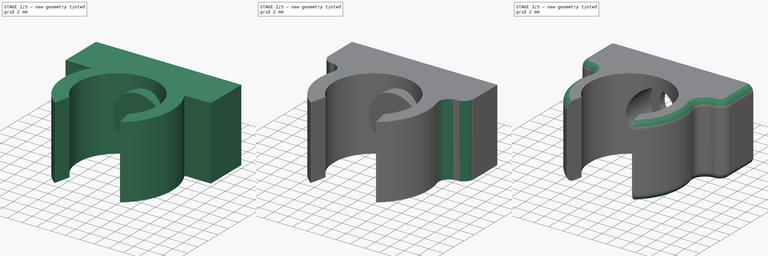
[diagram: build sequence overview — one tinted view per stage of 3, left to right]
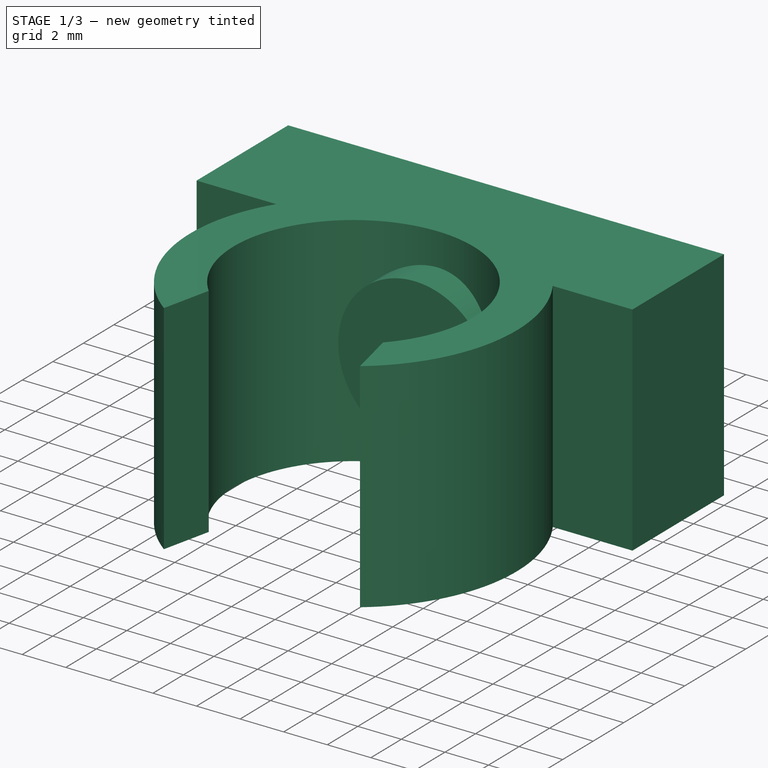
[diagram: stage 1 of 3 — iso view after this stage's code; geometry added in this stage tinted green]
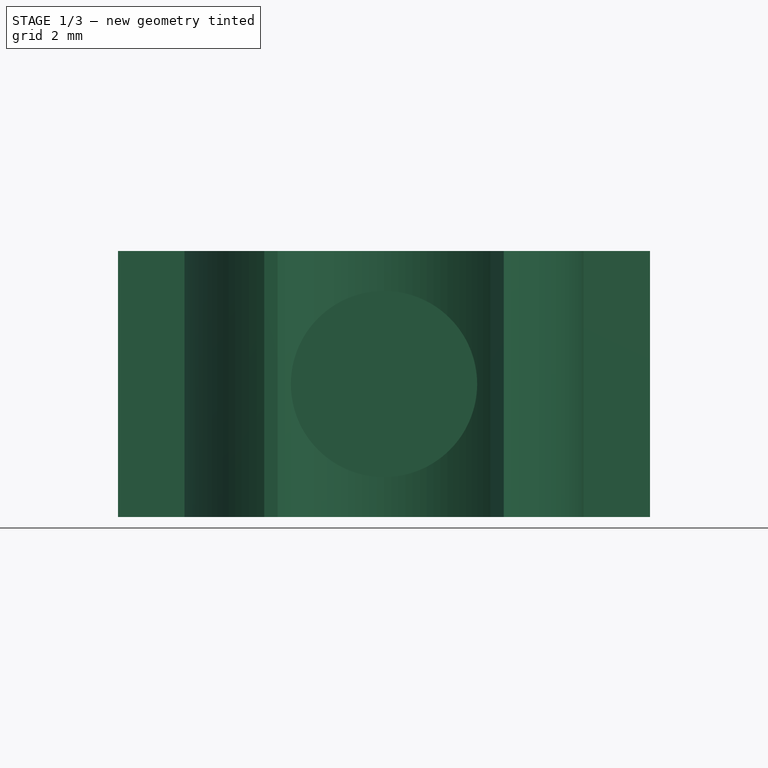
[diagram: stage 1 of 3 — front view after this stage's code; geometry added in this stage tinted green]
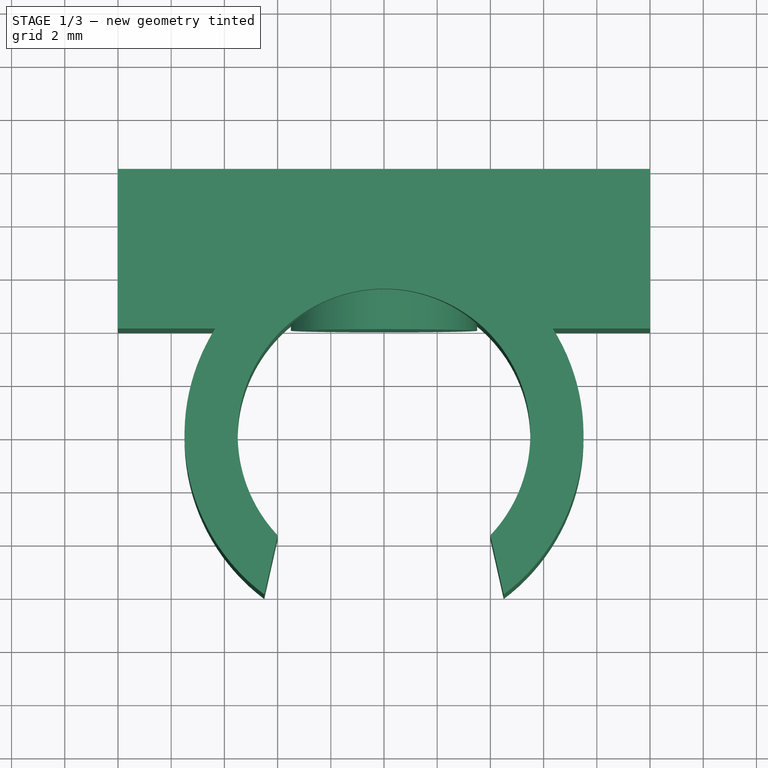
[diagram: stage 1 of 3 — top view after this stage's code; geometry added in this stage tinted green]
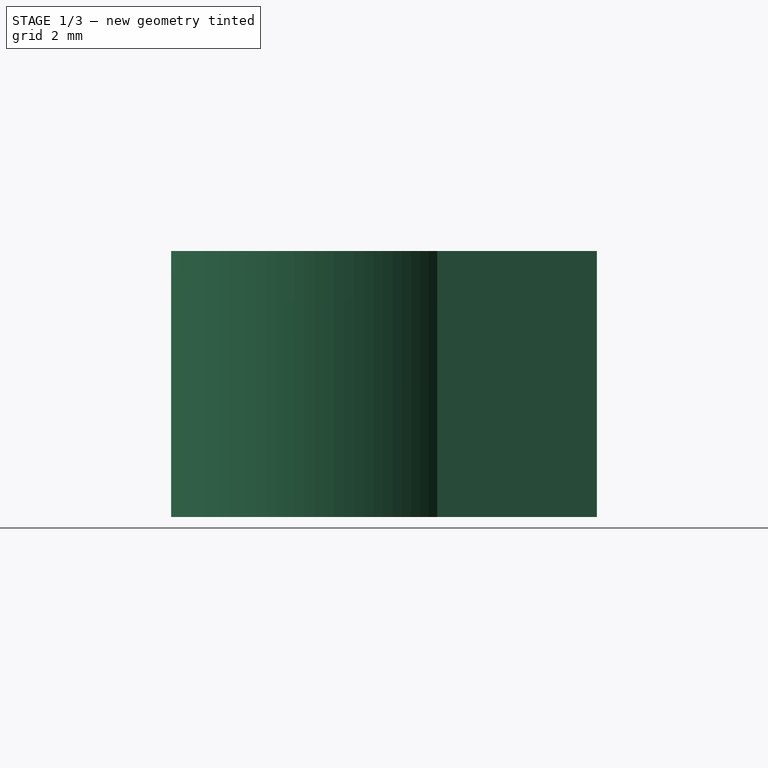
[diagram: stage 1 of 3 — right view after this stage's code; geometry added in this stage tinted green]
FCSTD DOCUMENT  (FreeCAD 0.16R6707 (Git))
Label: Wire_Bundle_Clip
License: CreativeCommons Attribution-NonCommercial
LicenseURL: http://creativecommons.org/licenses/by-nc/4.0/
objects: Sketcher::SketchObject×2, PartDesign::Fillet×2, PartDesign::Pad×1, PartDesign::Pocket×1, Part::Cylinder×1, Part::Cut×1
note: 10 computed .brp shape members not serialized (recipe doc carries the construction recipe); baked Part::Feature solids carry a one-line shape summary decoded from their .brp

FEATURE [Sketcher::SketchObject] Sketch
  sketch-geometry (14):
    g0: ArcOfCircle CenterX=0 CenterY=0 CenterZ=0 NormalX=0 NormalY=0 NormalZ=1 Radius=5.5 StartAngle=5.52673 EndAngle=10.1812
    g1: ArcOfCircle CenterX=0 CenterY=0 CenterZ=0 NormalX=0 NormalY=0 NormalZ=1 Radius=7.5 StartAngle=5.35589 EndAngle=6.84572
    g2: LineSegment StartX=-4 StartY=-3.77492 StartZ=0 EndX=-4.5 EndY=-6 EndZ=0
    g3: LineSegment StartX=4 StartY=-3.77492 StartZ=0 EndX=4.5 EndY=-6 EndZ=0
    g4: LineSegment StartX=-10 StartY=10 StartZ=0 EndX=10 EndY=10 EndZ=0
    g5: LineSegment StartX=10 StartY=10 StartZ=0 EndX=10 EndY=4 EndZ=0
    g6: LineSegment StartX=10 StartY=4 StartZ=0 EndX=6.34429 EndY=4 EndZ=0
    g7: LineSegment StartX=-10 StartY=4 StartZ=0 EndX=-10 EndY=10 EndZ=0
    g8: GeomPoint [constr] X=-6.34429 Y=4 Z=0
    g9: GeomPoint [constr] X=-6.34429 Y=4 Z=0
    g10: GeomPoint [constr] X=6.34429 Y=4 Z=0
    g11: GeomPoint [constr] X=6.34429 Y=4 Z=0
    g12: LineSegment StartX=-6.34429 StartY=4 StartZ=0 EndX=-10 EndY=4 EndZ=0
    g13: ArcOfCircle CenterX=0 CenterY=0 CenterZ=0 NormalX=0 NormalY=0 NormalZ=1 Radius=7.5 StartAngle=2.57906 EndAngle=4.06889
  constraints (35):
    c: Coincident(g0,g-1)
    c: Radius(g0) = 5.5
    c: Coincident(g1,g-1)
    c: Radius(g1) = 7.5
    c: Coincident(g0,g3)
    c: Coincident(g0,g2)
    c: Coincident(g1,g3)
    c: Coincident(g13,g2)
    c: Symmetric(g0,g0,g-2)
    c: Symmetric(g13,g1,g-2)
    c: DistanceX(g0,g-1) = 4
    c: DistanceX(g13,g-1) = 4.5
    c: Coincident(g4,g5)
    c: Coincident(g5,g6)
    c: Coincident(g12,g7)
    c: Coincident(g7,g4)
    c: Horizontal(g4)
    c: Horizontal(g6)
    c: Vertical(g5)
    c: Vertical(g7)
    c: Symmetric(g5,g12,g-2)
    c: DistanceX(g4,g4) = 20
    c: PointOnObject(g8,g6)
    c: PointOnObject(g9,g1)
    c: Coincident(g9,g8)
    c: PointOnObject(g10,g1)
    c: PointOnObject(g11,g6)
    c: Coincident(g10,g11)
    c: Tangent(g6,g12)
    c: Equal(g1,g13)
    c: Coincident(g1,g13)
    c: Coincident(g12,g13)
    c: Coincident(g6,g1)
    c: DistanceY(g7,g7) = 6
    c: DistanceY(g-1,g7) = 4
FEATURE [PartDesign::Pad] Pad
  Length = 10
  Length2 = 100
  Sketch = -> Sketch
  Type = 0
FEATURE [Part::Cylinder] Cylinder
  Angle = 360
  Height = 5
  Placement = pos=(0,9,5) rot=(1,0,0;1.5708rad)
  Radius = 3.5
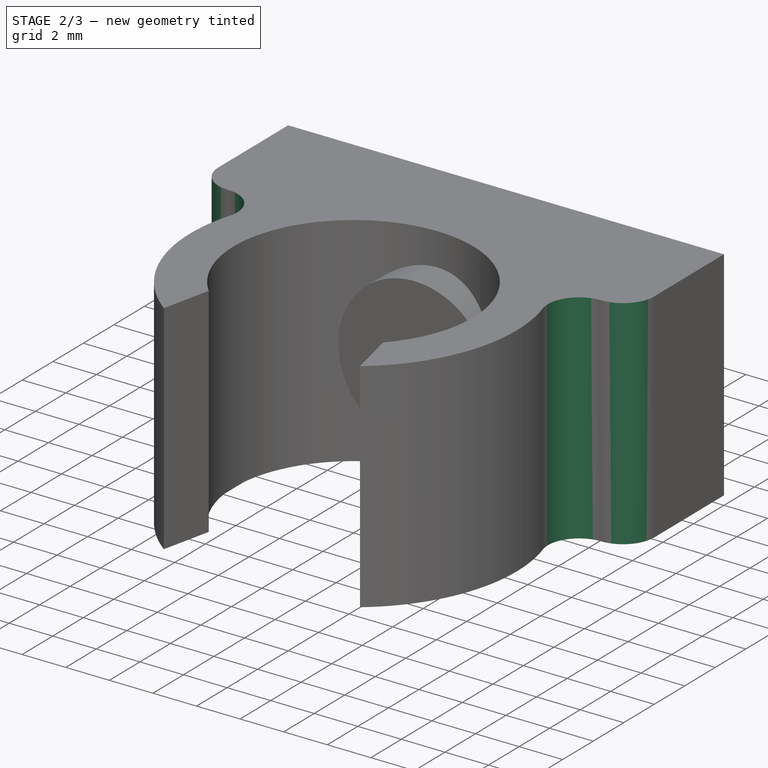
[diagram: stage 2 of 3 — iso view after this stage's code; geometry added in this stage tinted green]
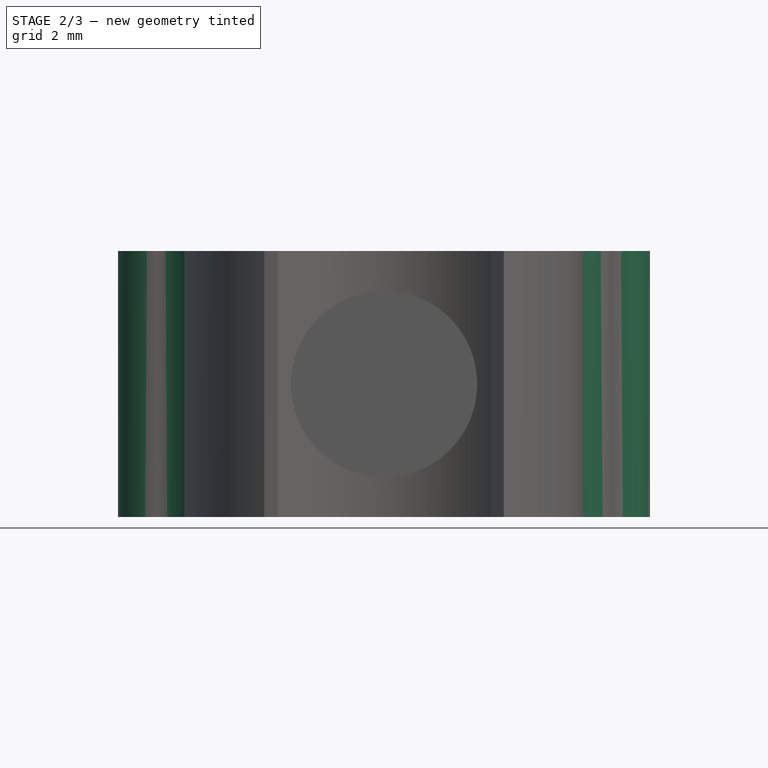
[diagram: stage 2 of 3 — front view after this stage's code; geometry added in this stage tinted green]
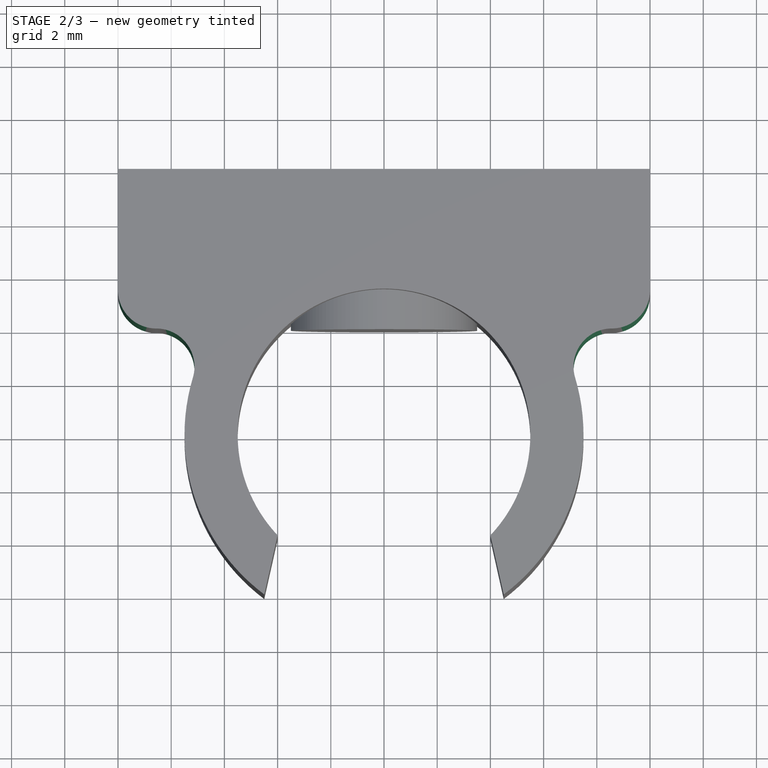
[diagram: stage 2 of 3 — top view after this stage's code; geometry added in this stage tinted green]
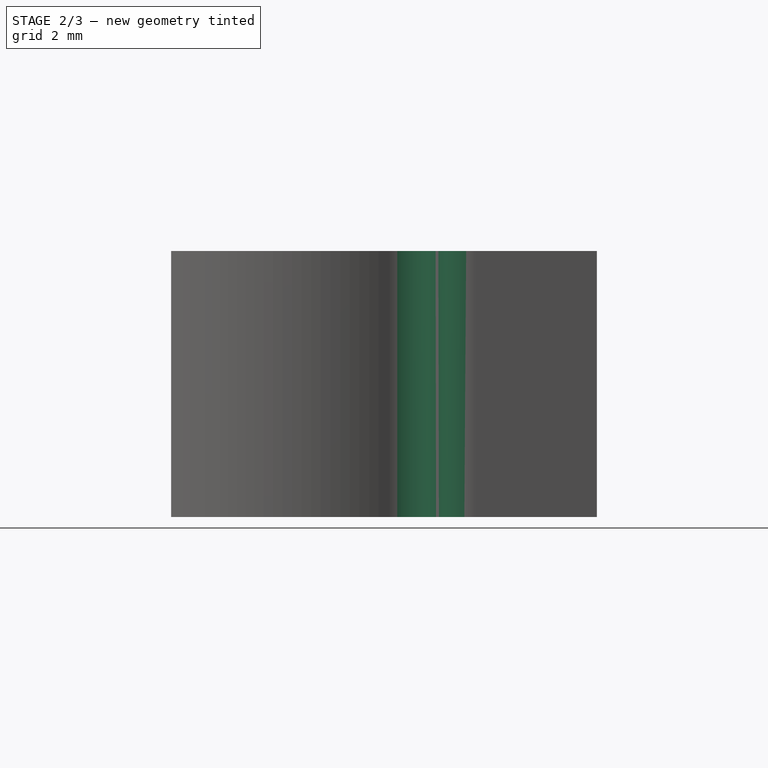
[diagram: stage 2 of 3 — right view after this stage's code; geometry added in this stage tinted green]
FEATURE [PartDesign::Fillet] Fillet
  Base = -> Pad [Edge11,Edge14,Edge23,Edge26]
  Radius = 1.437
FEATURE [Sketcher::SketchObject] Sketch001
  Placement = pos=(0,10,0) rot=(0,0.707107,0.707107;3.14159rad)
  Support = -> Fillet [Face12]
  sketch-geometry (1):
    g0: Circle CenterX=0 CenterY=5 CenterZ=0 NormalX=0 NormalY=0 NormalZ=1 Radius=2.2
  constraints (3):
    c: PointOnObject(g0,g-2)
    c: DistanceY(g-1,g0) = 5
    c: Radius(g0) = 2.2
FEATURE [PartDesign::Pocket] Pocket
  Length = 5
  Sketch = -> Sketch001
  Type = 0
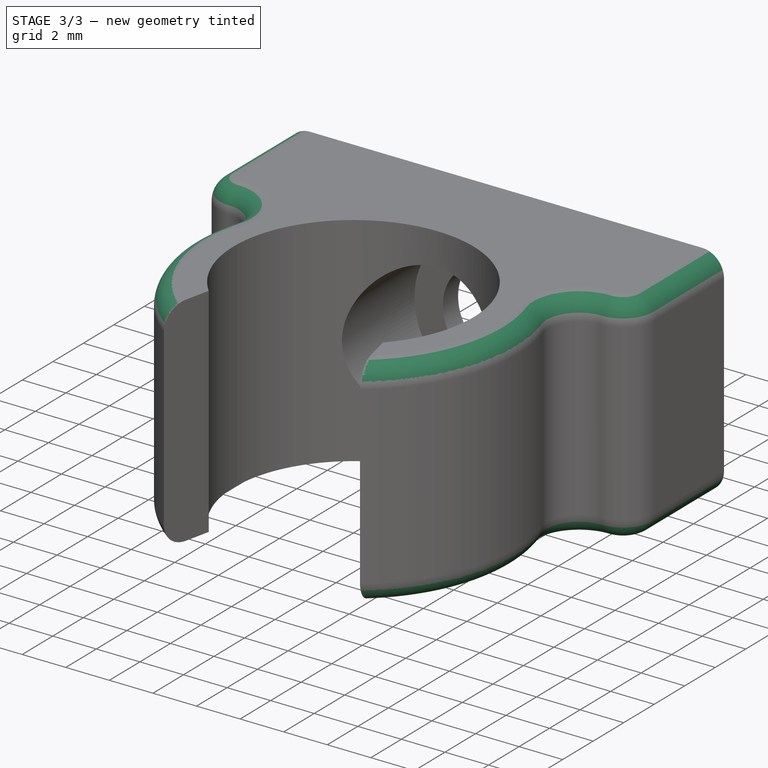
[diagram: stage 3 of 3 — iso view after this stage's code; geometry added in this stage tinted green]
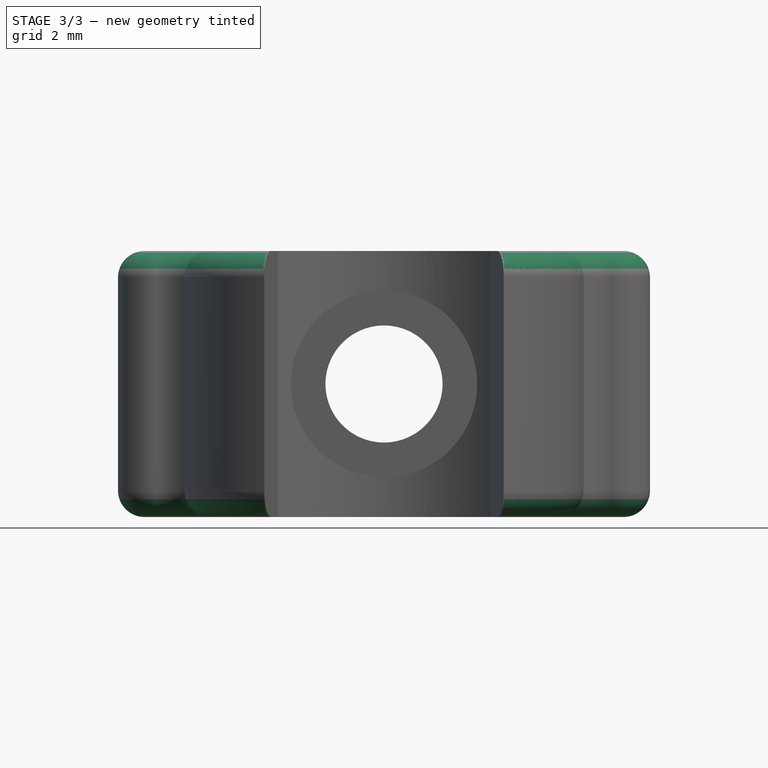
[diagram: stage 3 of 3 — front view after this stage's code; geometry added in this stage tinted green]
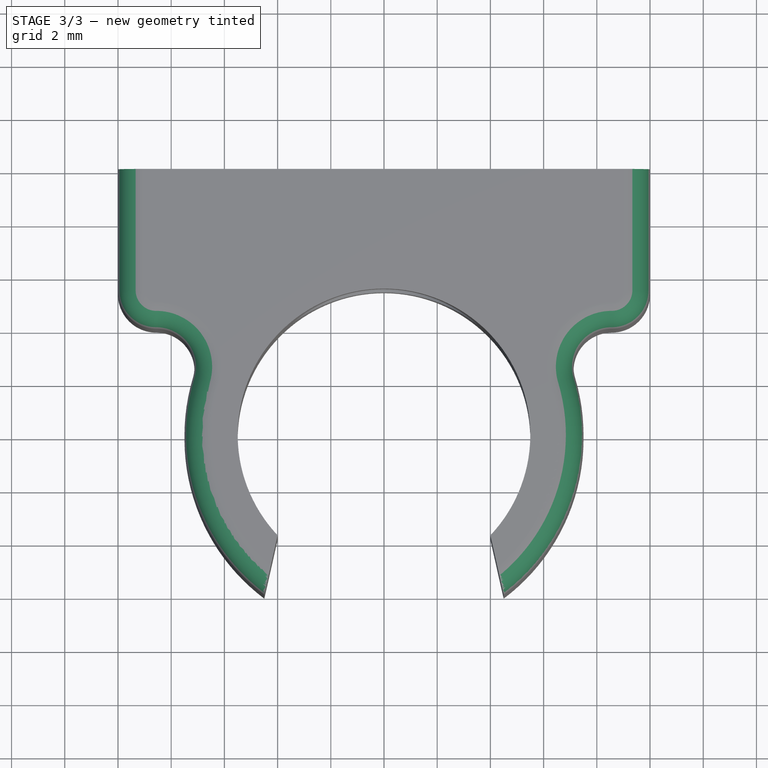
[diagram: stage 3 of 3 — top view after this stage's code; geometry added in this stage tinted green]
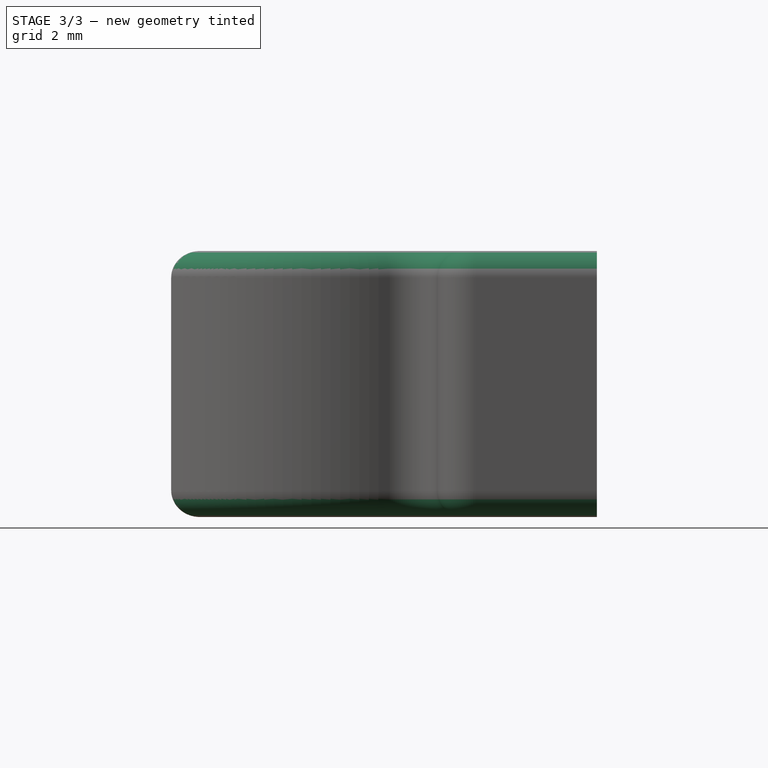
[diagram: stage 3 of 3 — right view after this stage's code; geometry added in this stage tinted green]
FEATURE [Part::Cut] Cut
  Base = -> Pocket
  Tool = -> Cylinder
FEATURE [PartDesign::Fillet] Fillet001
  Base = -> Cut [Edge30,Edge15,Edge11,Edge26]
  Radius = 1
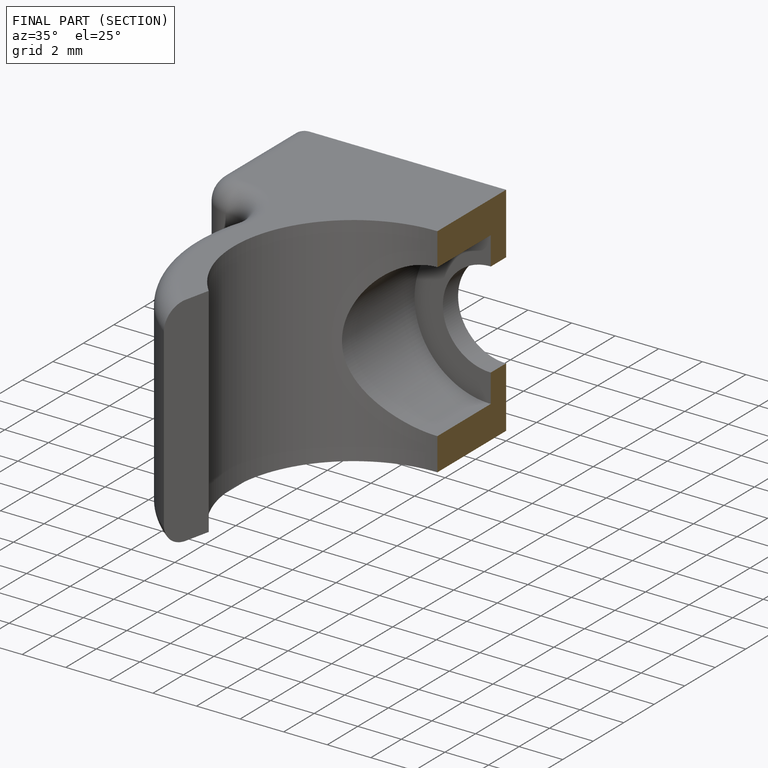
[diagram: finished part — half-section view (interior)]
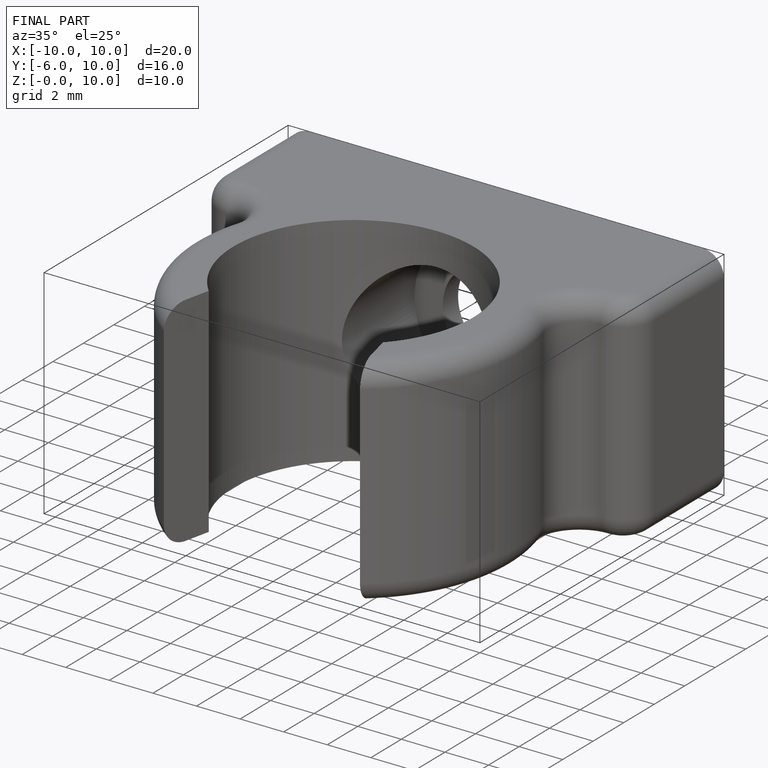
[diagram: finished part — iso view with bounding-box wireframe]
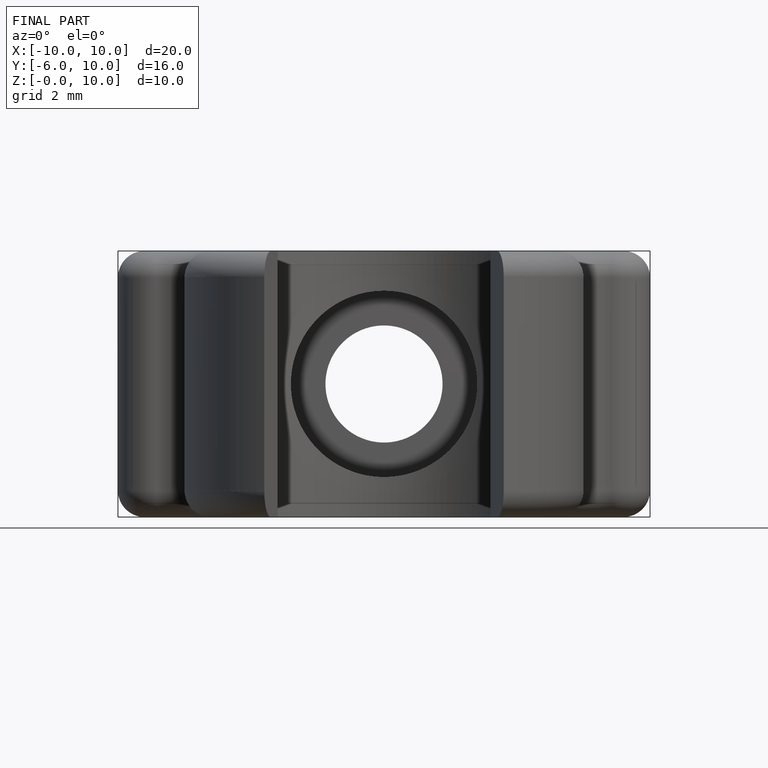
[diagram: finished part — front view with bounding-box wireframe]
